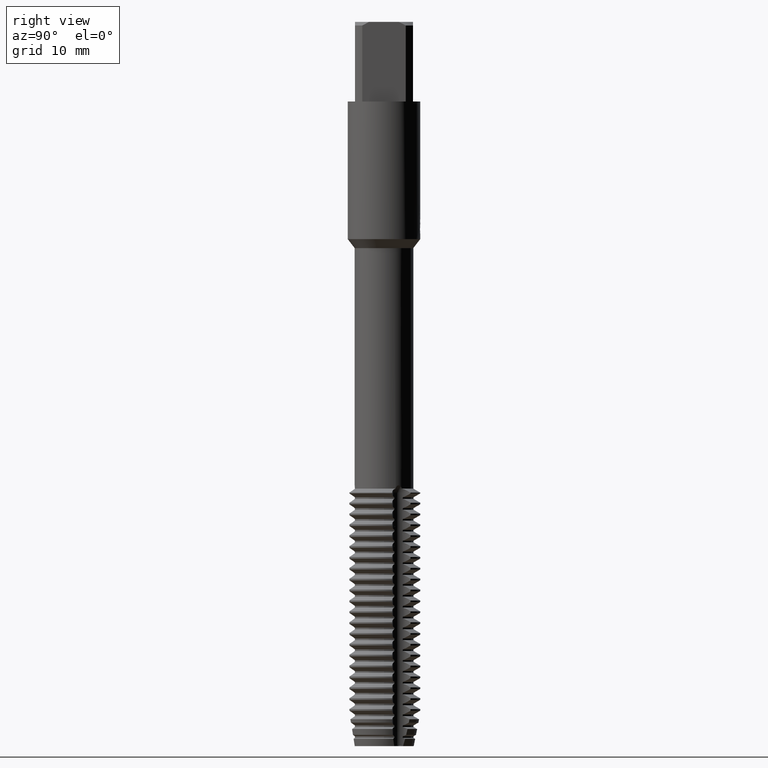
[diagram: clean part render]
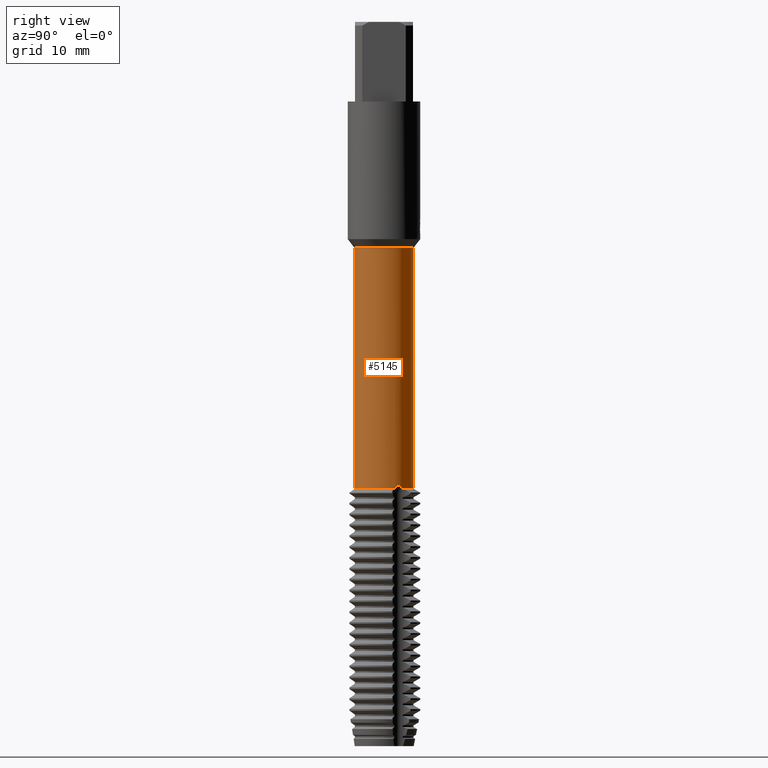
[diagram: same view with one face highlighted and labeled with its STEP entity id]
A machine part, right view. The second image highlights one B-rep face of the part: STEP entity #5145.
In plain terms, the highlighted cylindrical surface (edge-blend (fillet) strip) has radius 4.05 mm, axis along (-0, -0, 1).
Its self-contained STEP definition (entity closure, byte-faithful):
#2813=VERTEX_POINT('',#8356);
#3415=VERTEX_POINT('',#9012);
#4685=VERTEX_POINT('',#10398);
#4723=EDGE_CURVE('',#7385,#2813,#10439,.T.);
#5145=ADVANCED_FACE('',(#10900),#10901,.T.);
#5167=VERTEX_POINT('',#10924);
#5559=EDGE_CURVE('',#7443,#3415,#11354,.T.);
#5809=EDGE_CURVE('',#7385,#7641,#11628,.T.);
#5935=EDGE_CURVE('',#4685,#2813,#11770,.T.);
#6519=EDGE_CURVE('',#7443,#5167,#12388,.T.);
#7385=VERTEX_POINT('',#13343);
#7443=VERTEX_POINT('',#13404);
#7529=EDGE_CURVE('',#5167,#7641,#13496,.T.);
#7641=VERTEX_POINT('',#13614);
#8037=EDGE_CURVE('',#4685,#3415,#14048,.T.);
#8356=CARTESIAN_POINT('',(0.516839932905348,-4.0168864165862,-64.4515172442699));
#9012=CARTESIAN_POINT('',(4.95965573298063E-016,-4.05,-31.23070893));
#10398=CARTESIAN_POINT('',(5.5393782341545E-016,-4.05,-63.991477286348));
#10439=CIRCLE('',#17953,4.05);
#10900=FACE_OUTER_BOUND('',#18709,.T.);
#10901=CYLINDRICAL_SURFACE('',#18710,4.05);
#10924=CARTESIAN_POINT('',(-4.95965573298064E-016,4.05,-64.4515172442699));
#11354=CIRCLE('',#19513,4.05);
#11628=B_SPLINE_CURVE_WITH_KNOTS('',3,(#19967,#19968,#19969,#19970,#19971,#19972,#19973,#19974,#19975,#19976,#19977,#19978,#19979,#19980,#19981,#19982),.UNSPECIFIED.,.F.,.F.,(4,2,2,2,2,2,2,4),(0.0,0.391890958982145,0.641344140201554,0.81746251638931,0.980873436613595,1.18739906180264,1.49957815896782,1.68651794829625),.UNSPECIFIED.);
#11770=B_SPLINE_CURVE_WITH_KNOTS('',3,(#20221,#20222,#20223,#20224,#20225,#20226,#20227,#20228,#20229,#20230,#20231,#20232,#20233,#20234,#20235,#20236,#20237,#20238),.UNSPECIFIED.,.F.,.F.,(4,2,2,2,2,2,2,2,4),(0.0,0.342258734862146,0.633721720355772,0.791299907184917,0.902089086654215,1.01258402740018,1.16876531145277,1.46537374212692,1.80507058112752),.UNSPECIFIED.);
#12388=LINE('',#21428,#21429);
#13343=CARTESIAN_POINT('',(3.73714564733288,1.56084669670695,-64.4515172442699));
#13404=CARTESIAN_POINT('',(0.0,4.05,-31.23070893));
#13496=CIRCLE('',#23281,4.05);
#13614=CARTESIAN_POINT('',(3.22030571442766,2.45603971987931,-64.4515172442699));
#14048=LINE('',#24259,#24260);
#17953=AXIS2_PLACEMENT_3D('',#27247,#27248,#27249);
#18709=EDGE_LOOP('',(#27737,#27738,#27739,#27740,#27741,#27742,#27743));
#18710=AXIS2_PLACEMENT_3D('',#27744,#27745,#27746);
#19513=AXIS2_PLACEMENT_3D('',#28419,#28420,#28421);
#19967=CARTESIAN_POINT('',(3.73714564733284,1.56084669670702,-64.4515172442699));
#19968=CARTESIAN_POINT('',(3.71868464544495,1.60504799655042,-64.3299865201047));
#19969=CARTESIAN_POINT('',(3.69354423599109,1.66305103084554,-64.2273353765263));
#19970=CARTESIAN_POINT('',(3.64165915290623,1.77286498187516,-64.100635567127));
#19971=CARTESIAN_POINT('',(3.61754048326157,1.82200870395597,-64.0584225050603));
#19972=CARTESIAN_POINT('',(3.56871207061328,1.91538396123069,-64.0096629043448));
#19973=CARTESIAN_POINT('',(3.54671573529234,1.95591322875106,-63.996776949246));
#19974=CARTESIAN_POINT('',(3.50122314648888,2.03615007681573,-63.9890978387467));
#19975=CARTESIAN_POINT('',(3.4788311753465,2.07414746814325,-63.9932209929361));
#19976=CARTESIAN_POINT('',(3.42802454198807,2.15733846076355,-64.0191587259245));
#19977=CARTESIAN_POINT('',(3.40078929703568,2.1998237055561,-64.0447141176045));
#19978=CARTESIAN_POINT('',(3.33730880648973,2.29557188221729,-64.1276409250778));
#19979=CARTESIAN_POINT('',(3.30104609652092,2.34701523626821,-64.1978217129161));
#19980=CARTESIAN_POINT('',(3.25035296417915,2.41634857581736,-64.3380810622314));
#19981=CARTESIAN_POINT('',(3.23401776940433,2.43806077245405,-64.3941507608432));
#19982=CARTESIAN_POINT('',(3.22030571442772,2.45603971987918,-64.4515172442699));
#20221=CARTESIAN_POINT('',(-0.516839932905132,-4.01688641658618,-64.4515172442699));
#20222=CARTESIAN_POINT('',(-0.475347025675085,-4.02222517630323,-64.3453781488243));
#20223=CARTESIAN_POINT('',(-0.422138579256926,-4.02842740220326,-64.2534497445638));
#20224=CARTESIAN_POINT('',(-0.306546669331587,-4.03873469704525,-64.117541813207));
#20225=CARTESIAN_POINT('',(-0.247823046975707,-4.04289007660584,-64.0697692296002));
#20226=CARTESIAN_POINT('',(-0.152001692318401,-4.04728656735163,-64.0206363342864));
#20227=CARTESIAN_POINT('',(-0.116532991560935,-4.04849208864621,-64.0076259456432));
#20228=CARTESIAN_POINT('',(-0.0535514213925848,-4.049729439161,-63.9943449867824));
#20229=CARTESIAN_POINT('',(-0.0271806993001008,-4.04999598268212,-63.9915200337392));
#20230=CARTESIAN_POINT('',(0.0258994550134006,-4.05000391629286,-63.9914356139415));
#20231=CARTESIAN_POINT('',(0.0522096884642526,-4.04974664065487,-63.9941620286979));
#20232=CARTESIAN_POINT('',(0.114841636528671,-4.04853768565234,-64.0071342781702));
#20233=CARTESIAN_POINT('',(0.150052983560251,-4.04735753895215,-64.0198639375207));
#20234=CARTESIAN_POINT('',(0.246931179188856,-4.04296434386948,-64.0689017530864));
#20235=CARTESIAN_POINT('',(0.306806443728279,-4.03872715490448,-64.1175318928252));
#20236=CARTESIAN_POINT('',(0.422806373221101,-4.02834959780087,-64.2546034559354));
#20237=CARTESIAN_POINT('',(0.475608063266802,-4.02219158943086,-64.3460458844859));
#20238=CARTESIAN_POINT('',(0.516839932905136,-4.01688641658619,-64.4515172442699));
#21428=CARTESIAN_POINT('',(-4.95965573298063E-016,4.05,-47.8411130871349));
#21429=VECTOR('',#29439,1.0);
#23281=AXIS2_PLACEMENT_3D('',#30845,#30846,#30847);
#24259=CARTESIAN_POINT('',(4.95965573298063E-016,-4.05,-47.8411130871349));
#24260=VECTOR('',#31403,1.0);
#27247=CARTESIAN_POINT('',(0.0,0.0,-64.4515172442699));
#27248=DIRECTION('',(0.0,0.0,-1.0));
#27249=DIRECTION('',(0.0,1.0,0.0));
#27737=ORIENTED_EDGE('',*,*,#6519,.F.);
#27738=ORIENTED_EDGE('',*,*,#5559,.T.);
#27739=ORIENTED_EDGE('',*,*,#8037,.F.);
#27740=ORIENTED_EDGE('',*,*,#5935,.T.);
#27741=ORIENTED_EDGE('',*,*,#4723,.F.);
#27742=ORIENTED_EDGE('',*,*,#5809,.T.);
#27743=ORIENTED_EDGE('',*,*,#7529,.F.);
#27744=CARTESIAN_POINT('',(0.0,0.0,-47.8411130871349));
#27745=DIRECTION('',(-0.0,-0.0,1.0));
#27746=DIRECTION('',(0.0,1.0,0.0));
#28419=CARTESIAN_POINT('',(0.0,0.0,-31.23070893));
#28420=DIRECTION('',(0.0,0.0,-1.0));
#28421=DIRECTION('',(0.0,1.0,0.0));
#29439=DIRECTION('',(0.0,0.0,-1.0));
#30845=CARTESIAN_POINT('',(0.0,0.0,-64.4515172442699));
#30846=DIRECTION('',(0.0,0.0,-1.0));
#30847=DIRECTION('',(0.0,1.0,0.0));
#31403=DIRECTION('',(-0.0,-0.0,1.0));